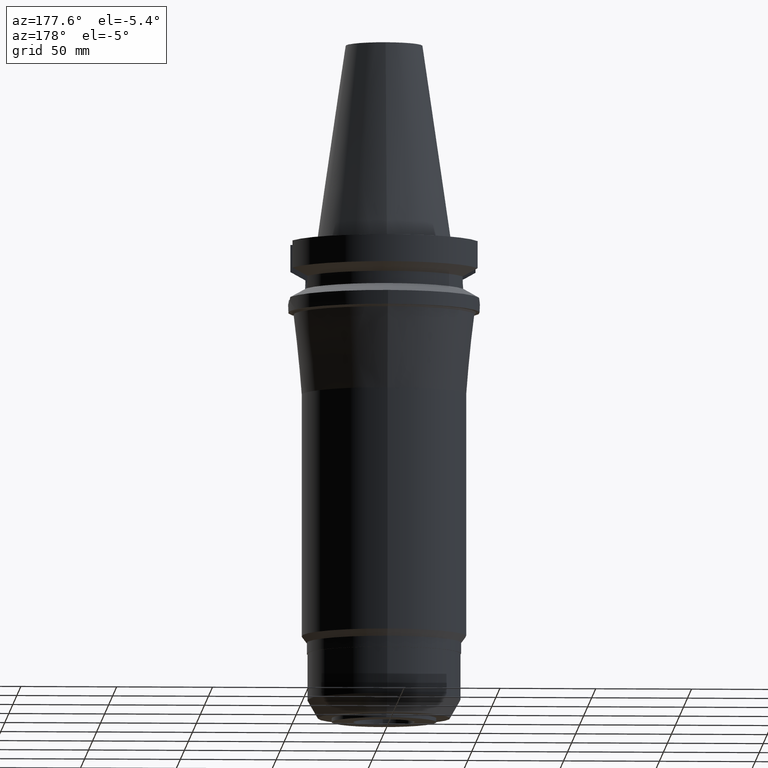
[diagram: clean part render]
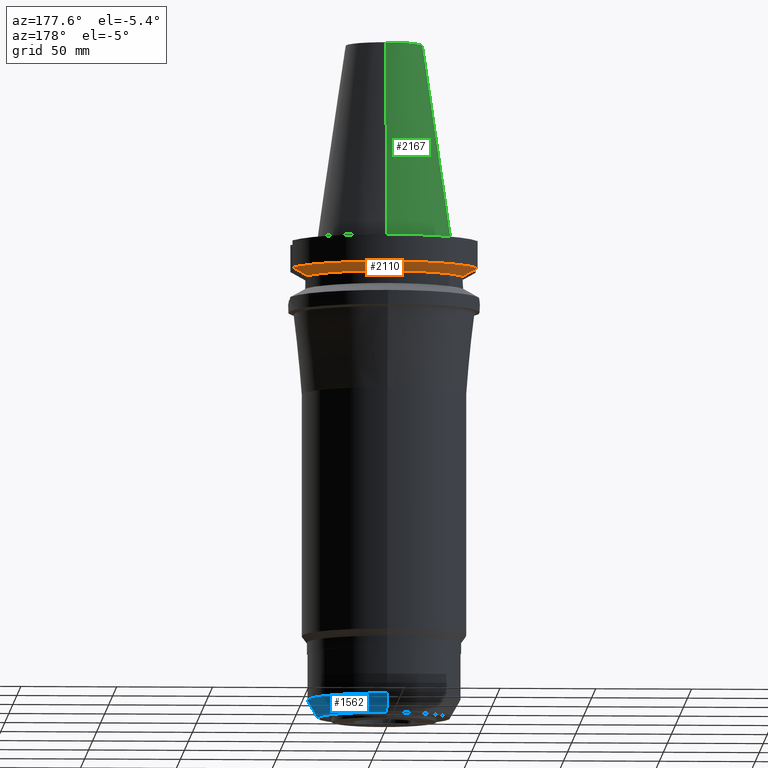
[diagram: same view with three faces highlighted in distinct colors, each labeled with its STEP entity id]
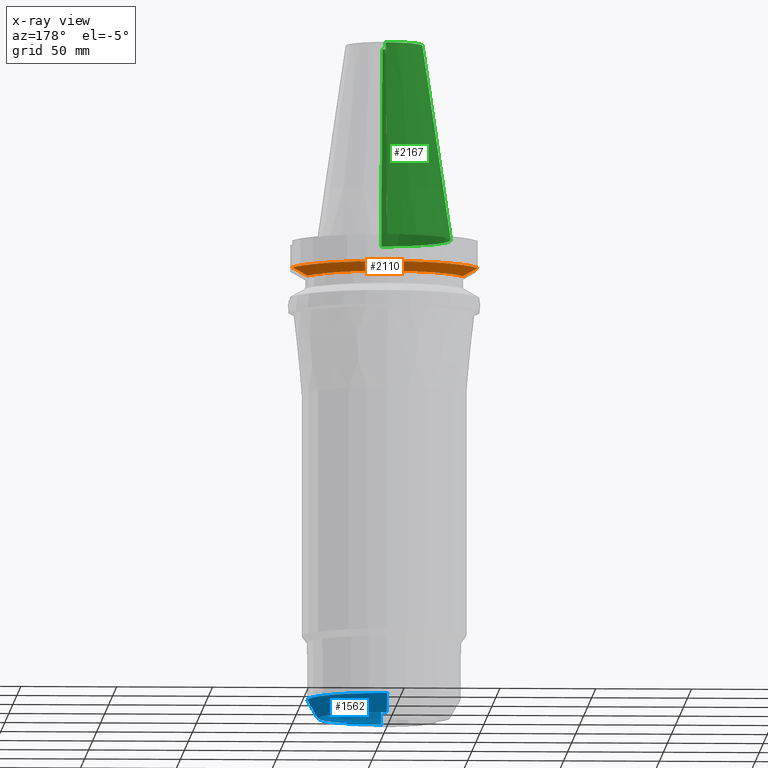
[diagram: x-ray of the same camera — body ghosted, the three highlighted faces saturated]
A machine part, auxiliary view with three faces highlighted in distinct colors.
The next image is the same camera in x-ray (body ghosted, the three faces saturated) — at least one of them is partly hidden behind the body in this view.
Their STEP definitions:

[orange] entity #2110 — the highlighted conical surface has half-angle 60 deg.
#740=CARTESIAN_POINT('',(4.832056912815E1,1.285000385726E1,-1.566265768273E1));
#741=CARTESIAN_POINT('',(4.745408729214E1,1.285000385726E1,-1.614611802343E1));
#742=CARTESIAN_POINT('',(4.572065044666E1,1.284999774294E1,-1.711204883216E1));
#743=CARTESIAN_POINT('',(4.311729623625E1,1.285000211381E1,-1.855526471604E1));
#744=CARTESIAN_POINT('',(4.138011668009E1,1.284999657247E1,-1.951445436178E1));
#745=CARTESIAN_POINT('',(4.051083297203E1,1.284999657247E1,-1.999284555852E1));
#993=CARTESIAN_POINT('',(-4.051083297141E1,1.284999657443E1,-1.999284554354E1));
#994=CARTESIAN_POINT('',(-4.138011667034E1,1.284999657443E1,-1.951445435184E1));
#995=CARTESIAN_POINT('',(-4.311729628375E1,1.285000211307E1,-1.855526479721E1));
#996=CARTESIAN_POINT('',(-4.572065049660E1,1.284999774261E1,-1.711204891850E1));
#997=CARTESIAN_POINT('',(-4.745408728479E1,1.285000385852E1,-1.614611801600E1));
#998=CARTESIAN_POINT('',(-4.832056912781E1,1.285000385852E1,-1.566265767139E1));
#1003=CARTESIAN_POINT('',(0.E0,1.006319759054E-14,-1.999281925465E1));
#1004=DIRECTION('',(0.E0,0.E0,-1.E0));
#1005=DIRECTION('',(-9.531960443487E-1,3.023529411765E-1,0.E0));
#1006=AXIS2_PLACEMENT_3D('',#1003,#1004,#1005);
#1011=CARTESIAN_POINT('',(0.E0,1.006319759054E-14,-1.999281925465E1));
#1012=DIRECTION('',(0.E0,0.E0,-1.E0));
#1013=DIRECTION('',(0.E0,1.E0,0.E0));
#1014=AXIS2_PLACEMENT_3D('',#1011,#1012,#1013);
#1019=CARTESIAN_POINT('',(0.E0,1.006319759054E-14,-1.566269223573E1));
#1020=DIRECTION('',(0.E0,0.E0,1.E0));
#1021=DIRECTION('',(9.664114030784E-1,2.57E-1,0.E0));
#1022=AXIS2_PLACEMENT_3D('',#1019,#1020,#1021);
#1027=CARTESIAN_POINT('',(0.E0,1.006319759054E-14,-1.566269223573E1));
#1028=DIRECTION('',(0.E0,0.E0,1.E0));
#1029=DIRECTION('',(0.E0,1.E0,0.E0));
#1030=AXIS2_PLACEMENT_3D('',#1027,#1028,#1029);
#1250=CARTESIAN_POINT('',(4.051083297203E1,1.284999657247E1,-1.999284555852E1));
#1251=VERTEX_POINT('',#1250);
#1252=CARTESIAN_POINT('',(-4.051083188482E1,1.285E1,-1.999281925465E1));
#1253=CARTESIAN_POINT('',(0.E0,4.25E1,-1.999281925465E1));
#1254=VERTEX_POINT('',#1252);
#1255=VERTEX_POINT('',#1253);
#1290=VERTEX_POINT('',#998);
#1295=VERTEX_POINT('',#740);
#1296=CARTESIAN_POINT('',(0.E0,5.E1,-1.566269223573E1));
#1297=VERTEX_POINT('',#1296);
#2095=CARTESIAN_POINT('',(0.E0,1.006319759054E-14,-1.782775574519E1));
#2096=DIRECTION('',(0.E0,0.E0,1.E0));
#2097=DIRECTION('',(0.E0,1.E0,0.E0));
#2098=AXIS2_PLACEMENT_3D('',#2095,#2096,#2097);
#2099=CONICAL_SURFACE('',#2098,4.625E1,6.E1);
#2100=ORIENTED_EDGE('',*,*,#2085,.F.);
#2101=ORIENTED_EDGE('',*,*,#1910,.T.);
#2102=ORIENTED_EDGE('',*,*,#1908,.T.);
#2103=ORIENTED_EDGE('',*,*,#1930,.F.);
#2105=ORIENTED_EDGE('',*,*,#2104,.T.);
#2107=ORIENTED_EDGE('',*,*,#2106,.T.);
#2108=EDGE_LOOP('',(#2100,#2101,#2102,#2103,#2105,#2107));
#2109=FACE_OUTER_BOUND('',#2108,.F.);
#746=B_SPLINE_CURVE_WITH_KNOTS('',3,(#740,#741,#742,#743,#744,#745),
.UNSPECIFIED.,.F.,.F.,(4,1,1,4),(0.E0,3.333333333333E-1,6.666666666667E-1,1.E0),
.UNSPECIFIED.);
#999=B_SPLINE_CURVE_WITH_KNOTS('',3,(#993,#994,#995,#996,#997,#998),
.UNSPECIFIED.,.F.,.F.,(4,1,1,4),(0.E0,3.333333333333E-1,6.666666666667E-1,1.E0),
.UNSPECIFIED.);
#1007=CIRCLE('',#1006,4.25E1);
#1015=CIRCLE('',#1014,4.25E1);
#1023=CIRCLE('',#1022,5.E1);
#1031=CIRCLE('',#1030,5.E1);
#1908=EDGE_CURVE('',#1255,#1251,#1015,.T.);
#1910=EDGE_CURVE('',#1254,#1255,#1007,.T.);
#1930=EDGE_CURVE('',#1295,#1251,#746,.T.);
#2085=EDGE_CURVE('',#1254,#1290,#999,.T.);
#2104=EDGE_CURVE('',#1295,#1297,#1023,.T.);
#2106=EDGE_CURVE('',#1297,#1290,#1031,.T.);
#2110=ADVANCED_FACE('',(#2109),#2099,.T.);

[blue] entity #1562 — the highlighted conical surface has half-angle 30 deg.
#246=CARTESIAN_POINT('',(0.E0,-1.783698062958E-14,-2.504E2));
#247=DIRECTION('',(0.E0,0.E0,1.E0));
#248=DIRECTION('',(0.E0,-1.E0,0.E0));
#249=AXIS2_PLACEMENT_3D('',#246,#247,#248);
#278=DIRECTION('',(0.E0,-5.E-1,-8.660254037845E-1));
#279=VECTOR('',#278,1.096965511460E1);
#280=CARTESIAN_POINT('',(0.E0,4.E1,-2.409E2));
#281=LINE('',#280,#279);
#285=CARTESIAN_POINT('',(0.E0,-1.783698062958E-14,-2.409E2));
#286=DIRECTION('',(0.E0,0.E0,1.E0));
#287=DIRECTION('',(0.E0,-1.E0,0.E0));
#288=AXIS2_PLACEMENT_3D('',#285,#286,#287);
#301=DIRECTION('',(0.E0,5.E-1,-8.660254037845E-1));
#302=VECTOR('',#301,1.096965511460E1);
#303=CARTESIAN_POINT('',(0.E0,-4.E1,-2.409E2));
#304=LINE('',#303,#302);
#1169=CARTESIAN_POINT('',(0.E0,-3.451517244270E1,-2.504E2));
#1170=CARTESIAN_POINT('',(0.E0,3.451517244270E1,-2.504E2));
#1171=VERTEX_POINT('',#1169);
#1172=VERTEX_POINT('',#1170);
#1173=CARTESIAN_POINT('',(0.E0,4.E1,-2.409E2));
#1174=VERTEX_POINT('',#1173);
#1175=CARTESIAN_POINT('',(0.E0,-4.E1,-2.409E2));
#1176=VERTEX_POINT('',#1175);
#1548=CARTESIAN_POINT('',(0.E0,-1.783698062958E-14,-2.4565E2));
#1549=DIRECTION('',(0.E0,0.E0,1.E0));
#1550=DIRECTION('',(0.E0,1.E0,0.E0));
#1551=AXIS2_PLACEMENT_3D('',#1548,#1549,#1550);
#1552=CONICAL_SURFACE('',#1551,3.725758622135E1,3.E1);
#1554=ORIENTED_EDGE('',*,*,#1553,.T.);
#1555=ORIENTED_EDGE('',*,*,#1537,.F.);
#1557=ORIENTED_EDGE('',*,*,#1556,.F.);
#1559=ORIENTED_EDGE('',*,*,#1558,.T.);
#1560=EDGE_LOOP('',(#1554,#1555,#1557,#1559));
#1561=FACE_OUTER_BOUND('',#1560,.F.);
#250=CIRCLE('',#249,3.451517244270E1);
#289=CIRCLE('',#288,4.E1);
#1537=EDGE_CURVE('',#1171,#1172,#250,.T.);
#1553=EDGE_CURVE('',#1174,#1172,#281,.T.);
#1556=EDGE_CURVE('',#1176,#1171,#304,.T.);
#1558=EDGE_CURVE('',#1176,#1174,#289,.T.);
#1562=ADVANCED_FACE('',(#1561),#1552,.T.);

[green] entity #2167 — the highlighted conical surface has half-angle 8.297 deg.
#1063=DIRECTION('',(0.E0,-1.443043893539E-1,-9.895333461856E-1));
#1064=VECTOR('',#1063,1.028767755957E2);
#1065=CARTESIAN_POINT('',(0.E0,-2.007942971896E1,1.018E2));
#1066=LINE('',#1065,#1064);
#1070=CARTESIAN_POINT('',(0.E0,1.847992019913E-14,3.979039320257E-13));
#1071=DIRECTION('',(0.E0,0.E0,-1.E0));
#1072=DIRECTION('',(0.E0,-1.E0,0.E0));
#1073=AXIS2_PLACEMENT_3D('',#1070,#1071,#1072);
#1078=DIRECTION('',(0.E0,1.443043893539E-1,-9.895333461856E-1));
#1079=VECTOR('',#1078,1.028767755957E2);
#1080=CARTESIAN_POINT('',(0.E0,2.007942971896E1,1.018E2));
#1081=LINE('',#1080,#1079);
#1093=CARTESIAN_POINT('',(0.E0,1.847992019913E-14,1.018E2));
#1094=DIRECTION('',(0.E0,0.E0,-1.E0));
#1095=DIRECTION('',(0.E0,-1.E0,0.E0));
#1096=AXIS2_PLACEMENT_3D('',#1093,#1094,#1095);
#1282=CARTESIAN_POINT('',(0.E0,3.4925E1,5.542233338929E-13));
#1283=VERTEX_POINT('',#1282);
#1284=CARTESIAN_POINT('',(0.E0,-3.4925E1,5.542233338929E-13));
#1285=VERTEX_POINT('',#1284);
#1286=CARTESIAN_POINT('',(0.E0,2.007942971896E1,1.018E2));
#1287=VERTEX_POINT('',#1286);
#1288=CARTESIAN_POINT('',(0.E0,-2.007942971896E1,1.018E2));
#1289=VERTEX_POINT('',#1288);
#2153=CARTESIAN_POINT('',(0.E0,1.847992019913E-14,5.09E1));
#2154=DIRECTION('',(0.E0,0.E0,-1.E0));
#2155=DIRECTION('',(0.E0,-1.E0,0.E0));
#2156=AXIS2_PLACEMENT_3D('',#2153,#2154,#2155);
#2157=CONICAL_SURFACE('',#2156,2.750221485948E1,8.297E0);
#2159=ORIENTED_EDGE('',*,*,#2158,.F.);
#2161=ORIENTED_EDGE('',*,*,#2160,.F.);
#2163=ORIENTED_EDGE('',*,*,#2162,.T.);
#2164=ORIENTED_EDGE('',*,*,#2146,.T.);
#2165=EDGE_LOOP('',(#2159,#2161,#2163,#2164));
#2166=FACE_OUTER_BOUND('',#2165,.F.);
#1074=CIRCLE('',#1073,3.4925E1);
#1097=CIRCLE('',#1096,2.007942971896E1);
#2146=EDGE_CURVE('',#1285,#1283,#1074,.T.);
#2158=EDGE_CURVE('',#1287,#1283,#1081,.T.);
#2160=EDGE_CURVE('',#1289,#1287,#1097,.T.);
#2162=EDGE_CURVE('',#1289,#1285,#1066,.T.);
#2167=ADVANCED_FACE('',(#2166),#2157,.T.);